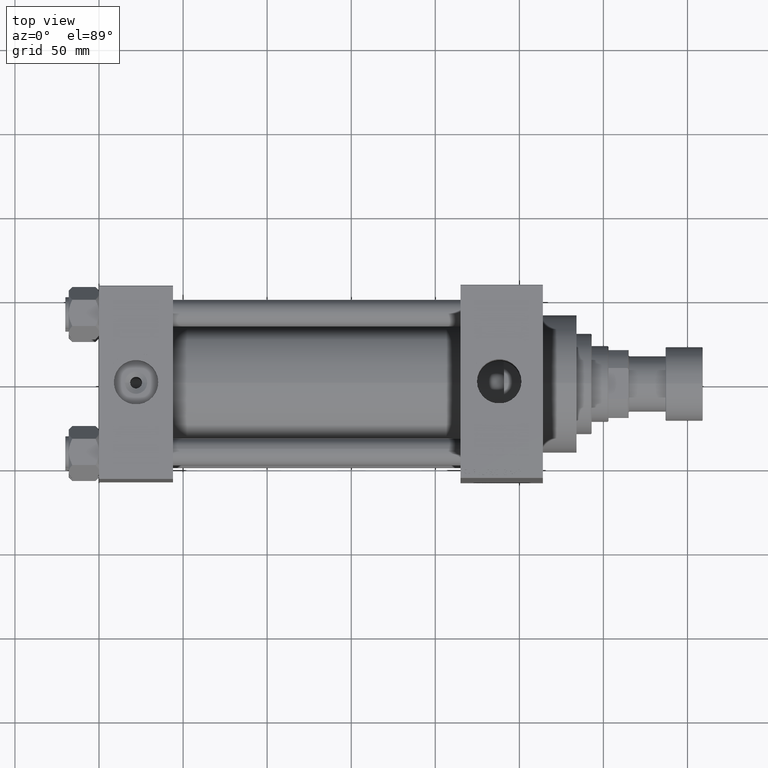
[diagram: clean part render]
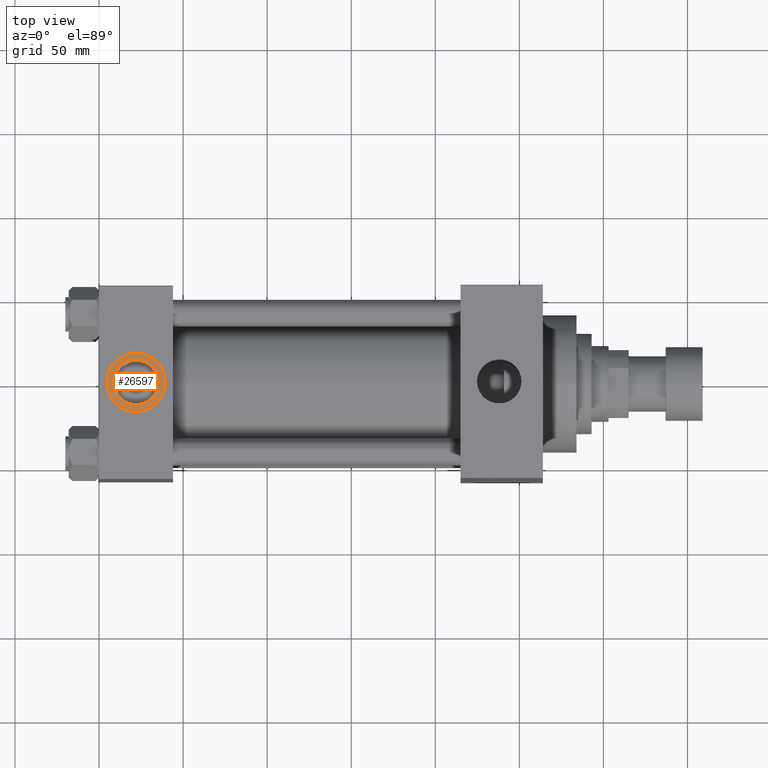
[diagram: same view with one face highlighted and labeled with its STEP entity id]
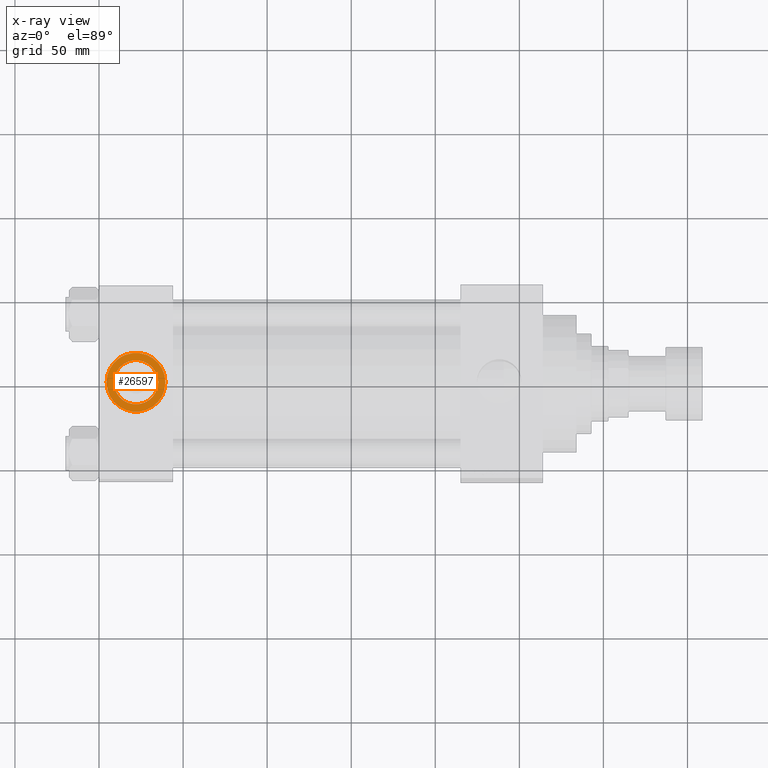
[diagram: x-ray of the same camera — body ghosted, the highlighted face saturated]
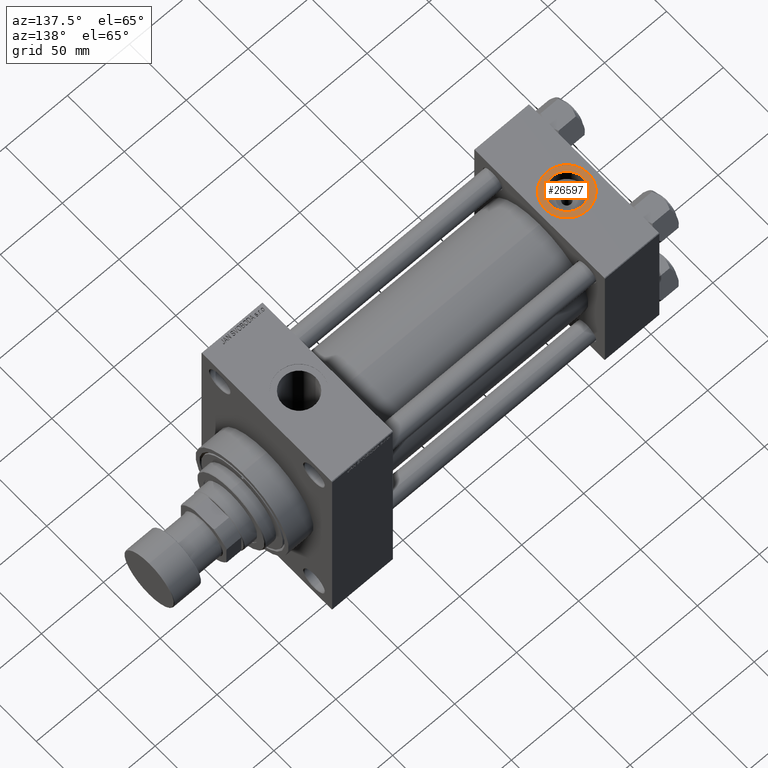
[diagram: same view with one face highlighted and labeled with its STEP entity id]
A machine part, top view. The second image highlights one B-rep face of the part: STEP entity #26597.
The next image is the same camera in x-ray: the body ghosted, the highlighted face saturated — about 0% of this face is hidden behind the body in this view.
A second angle (auxiliary view) of the same face is appended — the face is thin or edge-on in the first view.
In plain terms, the highlighted planar face has unit normal (0, 0, 1).
Its self-contained STEP definition (entity closure, byte-faithful):
#597 = FACE_OUTER_BOUND ( 'NONE', #25993, .T. ) ;
#4703 = AXIS2_PLACEMENT_3D ( 'NONE', #35359, #45858, #31213 ) ;
#5881 = EDGE_CURVE ( 'NONE', #29908, #44060, #39775, .T. ) ;
#9047 = DIRECTION ( 'NONE',  ( 0.000000000000000000, 0.000000000000000000, 1.000000000000000000 ) ) ;
#10346 = DIRECTION ( 'NONE',  ( 1.000000000000000000, 0.000000000000000000, 0.000000000000000000 ) ) ;
#11351 = DIRECTION ( 'NONE',  ( 0.000000000000000000, 0.000000000000000000, 1.000000000000000000 ) ) ;
#13436 = EDGE_CURVE ( 'NONE', #44060, #29908, #25992, .T. ) ;
#13449 = DIRECTION ( 'NONE',  ( 1.000000000000000000, 0.000000000000000000, 0.000000000000000000 ) ) ;
#13789 = ORIENTED_EDGE ( 'NONE', *, *, #46283, .T. ) ;
#14752 = CARTESIAN_POINT ( 'NONE',  ( 39.50000000000000000, -8.673617379884035472E-15, 57.30000000000000426 ) ) ;
#15485 = PLANE ( 'NONE',  #38118 ) ;
#16051 = CARTESIAN_POINT ( 'NONE',  ( 22.00000000000000000, -8.673617379884035472E-15, 57.30000000000000426 ) ) ;
#18583 = ORIENTED_EDGE ( 'NONE', *, *, #39922, .T. ) ;
#19231 = DIRECTION ( 'NONE',  ( 0.000000000000000000, 0.000000000000000000, 1.000000000000000000 ) ) ;
#19530 = EDGE_LOOP ( 'NONE', ( #37192, #28956 ) ) ;
#24929 = CIRCLE ( 'NONE', #46747, 17.50000000000000000 ) ;
#25257 = CARTESIAN_POINT ( 'NONE',  ( 22.00000000000000000, -8.673617379884035472E-15, 57.30000000000000426 ) ) ;
#25978 = DIRECTION ( 'NONE',  ( 0.000000000000000000, 0.000000000000000000, 1.000000000000000000 ) ) ;
#25992 = CIRCLE ( 'NONE', #34573, 13.22000000000000242 ) ;
#25993 = EDGE_LOOP ( 'NONE', ( #18583, #13789 ) ) ;
#26597 = ADVANCED_FACE ( 'NONE', ( #33358, #597 ), #15485, .T. ) ;
#28270 = CARTESIAN_POINT ( 'NONE',  ( 4.499999999999997335, -6.530485481376167224E-15, 57.30000000000000426 ) ) ;
#28956 = ORIENTED_EDGE ( 'NONE', *, *, #13436, .F. ) ;
#29556 = CARTESIAN_POINT ( 'NONE',  ( 8.779999999999994031, -7.054634311411234321E-15, 57.30000000000000426 ) ) ;
#29908 = VERTEX_POINT ( 'NONE', #36393 ) ;
#29931 = CARTESIAN_POINT ( 'NONE',  ( 22.00000000000000000, -8.673617379884035472E-15, 57.30000000000000426 ) ) ;
#30408 = DIRECTION ( 'NONE',  ( 1.000000000000000000, 0.000000000000000000, -0.000000000000000000 ) ) ;
#30577 = AXIS2_PLACEMENT_3D ( 'NONE', #16051, #9047, #13449 ) ;
#31213 = DIRECTION ( 'NONE',  ( 1.000000000000000000, 0.000000000000000000, 0.000000000000000000 ) ) ;
#32111 = CIRCLE ( 'NONE', #30577, 17.50000000000000000 ) ;
#32608 = VERTEX_POINT ( 'NONE', #28270 ) ;
#33358 = FACE_BOUND ( 'NONE', #19530, .T. ) ;
#34166 = DIRECTION ( 'NONE',  ( 1.000000000000000000, 0.000000000000000000, 0.000000000000000000 ) ) ;
#34573 = AXIS2_PLACEMENT_3D ( 'NONE', #45390, #19231, #34166 ) ;
#35359 = CARTESIAN_POINT ( 'NONE',  ( 22.00000000000000000, -8.673617379884035472E-15, 57.30000000000000426 ) ) ;
#36393 = CARTESIAN_POINT ( 'NONE',  ( 35.21999999999999886, -8.673617379884035472E-15, 57.30000000000000426 ) ) ;
#37192 = ORIENTED_EDGE ( 'NONE', *, *, #5881, .F. ) ;
#38118 = AXIS2_PLACEMENT_3D ( 'NONE', #29931, #11351, #30408 ) ;
#39775 = CIRCLE ( 'NONE', #4703, 13.22000000000000242 ) ;
#39922 = EDGE_CURVE ( 'NONE', #41447, #32608, #24929, .T. ) ;
#41447 = VERTEX_POINT ( 'NONE', #14752 ) ;
#44060 = VERTEX_POINT ( 'NONE', #29556 ) ;
#45390 = CARTESIAN_POINT ( 'NONE',  ( 22.00000000000000000, -8.673617379884035472E-15, 57.30000000000000426 ) ) ;
#45858 = DIRECTION ( 'NONE',  ( 0.000000000000000000, 0.000000000000000000, 1.000000000000000000 ) ) ;
#46283 = EDGE_CURVE ( 'NONE', #32608, #41447, #32111, .T. ) ;
#46747 = AXIS2_PLACEMENT_3D ( 'NONE', #25257, #25978, #10346 ) ;